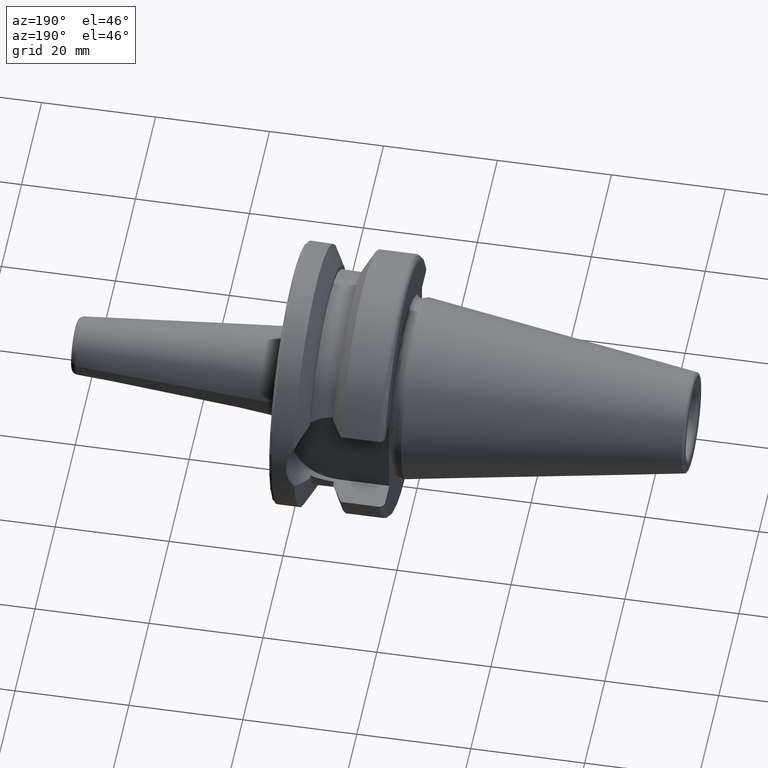
[diagram: clean part render]
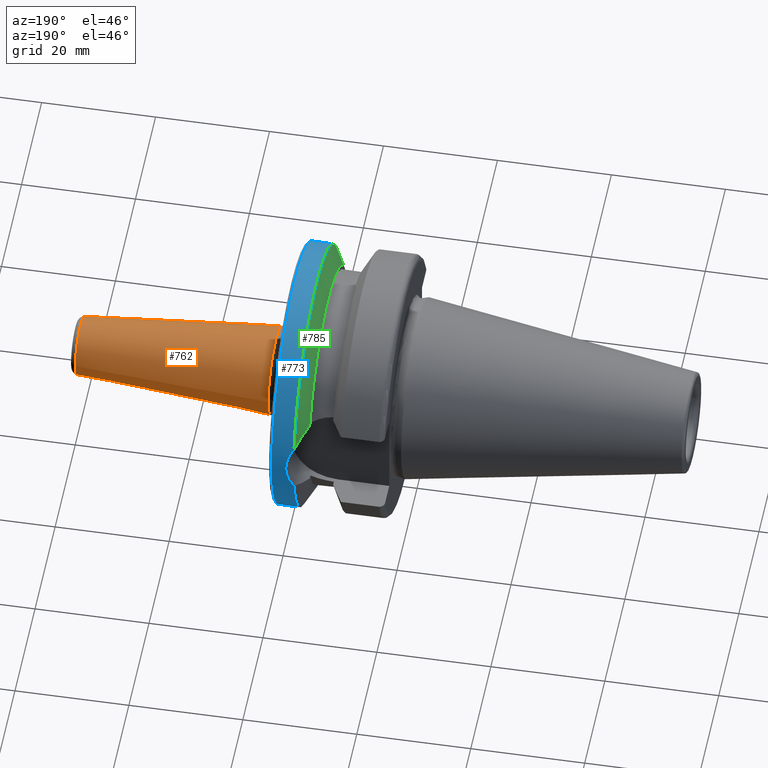
[diagram: same view with three faces highlighted in distinct colors, each labeled with its STEP entity id]
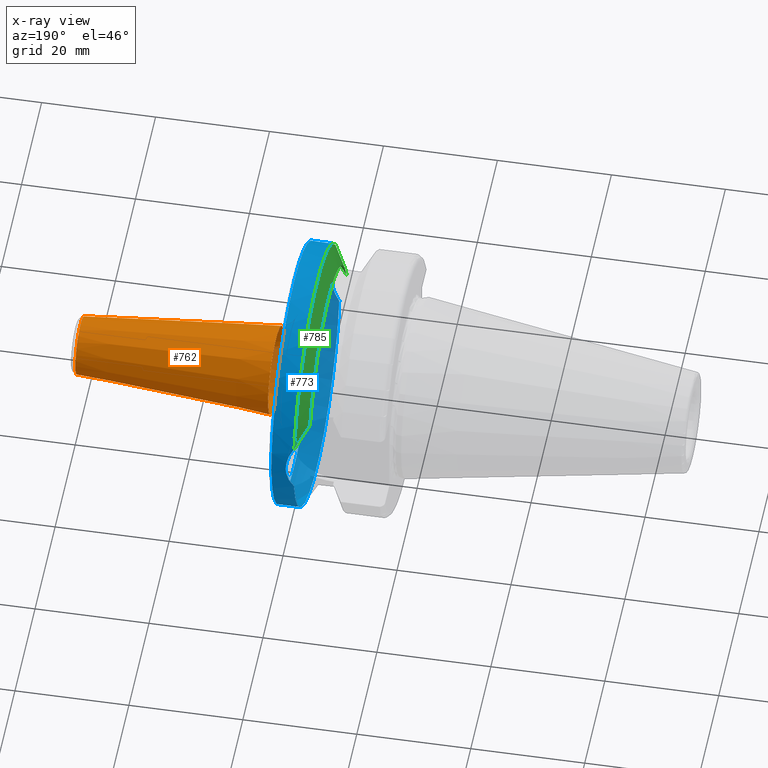
[diagram: x-ray of the same camera — body ghosted, the three highlighted faces saturated]
A machine part, auxiliary view with three faces highlighted in distinct colors.
The next image is the same camera in x-ray (body ghosted, the three faces saturated) — at least one of them is partly hidden behind the body in this view.
Their STEP definitions:

[orange] entity #762 — the highlighted conical surface has half-angle 4.5 deg.
#38=CONICAL_SURFACE('',#842,6.49533242966776,0.0785398163397455);
#49=LINE('',#1207,#88);
#88=VECTOR('',#965,6.49533242966776);
#163=FACE_OUTER_BOUND('',#211,.T.);
#211=EDGE_LOOP('',(#529,#530,#531,#532,#533,#534));
#266=CIRCLE('',#840,5.07252684207492);
#267=CIRCLE('',#841,5.07252684207492);
#268=CIRCLE('',#843,7.77308433311076);
#269=CIRCLE('',#844,7.77308433311076);
#321=VERTEX_POINT('',#1200);
#322=VERTEX_POINT('',#1202);
#323=VERTEX_POINT('',#1206);
#324=VERTEX_POINT('',#1208);
#401=EDGE_CURVE('',#321,#322,#266,.T.);
#402=EDGE_CURVE('',#322,#321,#267,.T.);
#403=EDGE_CURVE('',#322,#323,#49,.T.);
#404=EDGE_CURVE('',#324,#323,#268,.T.);
#405=EDGE_CURVE('',#323,#324,#269,.T.);
#529=ORIENTED_EDGE('',*,*,#401,.F.);
#530=ORIENTED_EDGE('',*,*,#402,.F.);
#531=ORIENTED_EDGE('',*,*,#403,.T.);
#532=ORIENTED_EDGE('',*,*,#404,.F.);
#533=ORIENTED_EDGE('',*,*,#405,.F.);
#534=ORIENTED_EDGE('',*,*,#403,.F.);
#762=ADVANCED_FACE('',(#163),#38,.T.);
#840=AXIS2_PLACEMENT_3D('',#1203,#959,#960);
#841=AXIS2_PLACEMENT_3D('',#1204,#961,#962);
#842=AXIS2_PLACEMENT_3D('',#1205,#963,#964);
#843=AXIS2_PLACEMENT_3D('',#1209,#966,#967);
#844=AXIS2_PLACEMENT_3D('',#1210,#968,#969);
#959=DIRECTION('center_axis',(1.,0.,0.));
#960=DIRECTION('ref_axis',(0.,1.,3.06161699786838E-17));
#961=DIRECTION('center_axis',(1.,0.,0.));
#962=DIRECTION('ref_axis',(0.,1.,3.06161699786838E-17));
#963=DIRECTION('center_axis',(-1.,0.,0.));
#964=DIRECTION('ref_axis',(0.,-1.,0.));
#965=DIRECTION('',(-0.996917333733128,0.0784590957278456,9.6084680447102E-18));
#966=DIRECTION('center_axis',(-1.,0.,0.));
#967=DIRECTION('ref_axis',(0.,1.,1.22464679914735E-16));
#968=DIRECTION('center_axis',(-1.,0.,0.));
#969=DIRECTION('ref_axis',(0.,1.,1.22464679914735E-16));
#1200=CARTESIAN_POINT('',(59.0784590957278,-6.21205376073608E-16,5.07252684207492));
#1202=CARTESIAN_POINT('',(59.0784590957278,5.07252684207492,6.21205376073608E-16));
#1203=CARTESIAN_POINT('Origin',(59.0784590957278,0.,4.65904032055206E-16));
#1204=CARTESIAN_POINT('Origin',(59.0784590957278,0.,4.65904032055206E-16));
#1205=CARTESIAN_POINT('Origin',(41.,0.,0.));
#1206=CARTESIAN_POINT('',(24.7646227128164,7.77308433311076,9.51928284804654E-16));
#1207=CARTESIAN_POINT('',(41.,6.49533242966776,7.95448806939063E-16));
#1208=CARTESIAN_POINT('',(24.7646227128164,-9.51928667994645E-16,-7.77308433311076));
#1209=CARTESIAN_POINT('Origin',(24.7646227128164,0.,0.));
#1210=CARTESIAN_POINT('Origin',(24.7646227128164,0.,0.));

[blue] entity #773 — the highlighted cylindrical surface (bore or boss wall) has radius 23 mm, axis along (1, 0, 0).
#22=B_SPLINE_CURVE_WITH_KNOTS('',3,(#1260,#1261,#1262,#1263,#1264,#1265),
 .UNSPECIFIED.,.F.,.F.,(4,2,4),(1.22422978521585,1.53019992929475,1.68242086035696),
 .UNSPECIFIED.);
#23=B_SPLINE_CURVE_WITH_KNOTS('',3,(#1267,#1268,#1269,#1270,#1271,#1272),
 .UNSPECIFIED.,.F.,.F.,(4,2,4),(0.766038710074736,0.918259641136944,1.22422978521585),
 .UNSPECIFIED.);
#29=B_SPLINE_CURVE_WITH_KNOTS('',3,(#1353,#1354,#1355,#1356,#1357,#1358,
#1359,#1360,#1361,#1362),.UNSPECIFIED.,.F.,.F.,(4,2,2,2,4),(3.21449828050643,
3.36671921156864,3.67268935564754,3.97865949972644,4.13088043078865),
 .UNSPECIFIED.);
#67=LINE('',#1349,#106);
#106=VECTOR('',#1027,23.);
#130=CYLINDRICAL_SURFACE('',#863,23.);
#174=FACE_OUTER_BOUND('',#223,.T.);
#223=EDGE_LOOP('',(#590,#591,#592,#593,#594,#595,#596,#597,#598));
#278=CIRCLE('',#864,23.);
#279=CIRCLE('',#865,23.);
#280=CIRCLE('',#866,23.);
#281=CIRCLE('',#867,23.);
#336=VERTEX_POINT('',#1252);
#337=VERTEX_POINT('',#1259);
#338=VERTEX_POINT('',#1266);
#354=VERTEX_POINT('',#1346);
#355=VERTEX_POINT('',#1347);
#356=VERTEX_POINT('',#1350);
#357=VERTEX_POINT('',#1352);
#422=EDGE_CURVE('',#337,#336,#22,.T.);
#423=EDGE_CURVE('',#338,#337,#23,.T.);
#443=EDGE_CURVE('',#354,#355,#278,.T.);
#444=EDGE_CURVE('',#354,#337,#67,.T.);
#445=EDGE_CURVE('',#336,#356,#279,.T.);
#446=EDGE_CURVE('',#356,#357,#29,.T.);
#447=EDGE_CURVE('',#357,#338,#280,.T.);
#448=EDGE_CURVE('',#355,#354,#281,.T.);
#590=ORIENTED_EDGE('',*,*,#443,.F.);
#591=ORIENTED_EDGE('',*,*,#444,.T.);
#592=ORIENTED_EDGE('',*,*,#422,.T.);
#593=ORIENTED_EDGE('',*,*,#445,.T.);
#594=ORIENTED_EDGE('',*,*,#446,.T.);
#595=ORIENTED_EDGE('',*,*,#447,.T.);
#596=ORIENTED_EDGE('',*,*,#423,.T.);
#597=ORIENTED_EDGE('',*,*,#444,.F.);
#598=ORIENTED_EDGE('',*,*,#448,.F.);
#773=ADVANCED_FACE('',(#174),#130,.T.);
#863=AXIS2_PLACEMENT_3D('',#1345,#1023,#1024);
#864=AXIS2_PLACEMENT_3D('',#1348,#1025,#1026);
#865=AXIS2_PLACEMENT_3D('',#1351,#1028,#1029);
#866=AXIS2_PLACEMENT_3D('',#1363,#1030,#1031);
#867=AXIS2_PLACEMENT_3D('',#1364,#1032,#1033);
#1023=DIRECTION('center_axis',(1.,1.62798202122572E-21,0.));
#1024=DIRECTION('ref_axis',(0.,1.,0.));
#1025=DIRECTION('center_axis',(1.,1.62798202122572E-21,0.));
#1026=DIRECTION('ref_axis',(0.,0.,-1.));
#1027=DIRECTION('',(-1.,-1.62798202122572E-21,0.));
#1028=DIRECTION('center_axis',(1.,1.62798202122572E-21,0.));
#1029=DIRECTION('ref_axis',(0.,0.,-1.));
#1030=DIRECTION('center_axis',(1.,1.62798202122572E-21,0.));
#1031=DIRECTION('ref_axis',(0.,0.,-1.));
#1032=DIRECTION('center_axis',(1.,1.62798202122572E-21,0.));
#1033=DIRECTION('ref_axis',(0.,0.,-1.));
#1252=CARTESIAN_POINT('',(17.6299409595063,-22.5570191120744,-4.49231441213885));
#1259=CARTESIAN_POINT('',(19.,-23.,-2.10223320941018E-15));
#1260=CARTESIAN_POINT('Ctrl Pts',(19.,-23.,-1.38777878078145E-15));
#1261=CARTESIAN_POINT('Ctrl Pts',(19.,-23.,-1.01990048026301));
#1262=CARTESIAN_POINT('Ctrl Pts',(18.7944172124482,-22.9255444052516,-2.10203503507381));
#1263=CARTESIAN_POINT('Ctrl Pts',(18.177239764242,-22.7242805076598,-3.58529925507118));
#1264=CARTESIAN_POINT('Ctrl Pts',(17.9228644767949,-22.6437642529734,-4.05674565589789));
#1265=CARTESIAN_POINT('Ctrl Pts',(17.6299409595063,-22.5570191120744,-4.49231441213885));
#1266=CARTESIAN_POINT('',(17.6299409595063,-22.5570191120744,4.49231441213885));
#1267=CARTESIAN_POINT('Ctrl Pts',(17.6299409595063,-22.5570191120744,4.49231441213885));
#1268=CARTESIAN_POINT('Ctrl Pts',(17.9228644767949,-22.6437642529734,4.05674565589789));
#1269=CARTESIAN_POINT('Ctrl Pts',(18.177239764242,-22.7242805076598,3.58529925507118));
#1270=CARTESIAN_POINT('Ctrl Pts',(18.7944172124482,-22.9255444052516,2.10203503507381));
#1271=CARTESIAN_POINT('Ctrl Pts',(19.,-23.,1.01990048026301));
#1272=CARTESIAN_POINT('Ctrl Pts',(19.,-23.,-1.38777878078145E-15));
#1345=CARTESIAN_POINT('Origin',(19.5649704797531,2.08176742104803E-15,0.));
#1346=CARTESIAN_POINT('',(21.5,-23.,-2.81668763803891E-15));
#1347=CARTESIAN_POINT('',(21.5,-7.34917066797608E-16,23.));
#1348=CARTESIAN_POINT('Origin',(21.5,2.0817705712413E-15,0.));
#1349=CARTESIAN_POINT('',(19.5649704797531,-23.,-2.81668763803891E-15));
#1350=CARTESIAN_POINT('',(17.6299409595063,22.5570191120744,-4.49231441213885));
#1351=CARTESIAN_POINT('Origin',(17.6299409595063,2.08176427085476E-15,0.));
#1352=CARTESIAN_POINT('',(17.6299409595063,22.5570191120744,4.49231441213885));
#1353=CARTESIAN_POINT('Ctrl Pts',(17.6299409595063,22.5570191120744,-4.49231441213885));
#1354=CARTESIAN_POINT('Ctrl Pts',(17.9228644767949,22.6437642529734,-4.05674565589788));
#1355=CARTESIAN_POINT('Ctrl Pts',(18.177239764242,22.7242805076598,-3.58529925507119));
#1356=CARTESIAN_POINT('Ctrl Pts',(18.7944172124482,22.9255444052516,-2.10203503507382));
#1357=CARTESIAN_POINT('Ctrl Pts',(19.,23.,-1.01990048026301));
#1358=CARTESIAN_POINT('Ctrl Pts',(19.,23.,1.01990048026301));
#1359=CARTESIAN_POINT('Ctrl Pts',(18.7944172124482,22.9255444052516,2.10203503507381));
#1360=CARTESIAN_POINT('Ctrl Pts',(18.177239764242,22.7242805076598,3.58529925507118));
#1361=CARTESIAN_POINT('Ctrl Pts',(17.9228644767949,22.6437642529734,4.05674565589789));
#1362=CARTESIAN_POINT('Ctrl Pts',(17.6299409595063,22.5570191120744,4.49231441213885));
#1363=CARTESIAN_POINT('Origin',(17.6299409595063,2.08176427085476E-15,0.));
#1364=CARTESIAN_POINT('Origin',(21.5,2.0817705712413E-15,0.));

[green] entity #785 — the highlighted conical surface has half-angle 60.125 deg.
#24=B_SPLINE_CURVE_WITH_KNOTS('',3,(#1274,#1275,#1276,#1277,#1278,#1279),
 .UNSPECIFIED.,.F.,.F.,(4,2,4),(9.25978800315029,9.40675815006574,9.7527233553007),
 .UNSPECIFIED.);
#36=B_SPLINE_CURVE_WITH_KNOTS('',3,(#1442,#1443,#1444,#1445,#1446,#1447),
 .UNSPECIFIED.,.F.,.F.,(4,2,4),(1.87172696882225,2.21769217405721,2.36466232097267),
 .UNSPECIFIED.);
#43=CONICAL_SURFACE('',#887,21.2331286619655,1.04937921276159);
#186=FACE_OUTER_BOUND('',#235,.T.);
#235=EDGE_LOOP('',(#659,#660,#661,#662));
#280=CIRCLE('',#866,23.);
#290=CIRCLE('',#888,19.466257323931);
#338=VERTEX_POINT('',#1266);
#339=VERTEX_POINT('',#1273);
#357=VERTEX_POINT('',#1352);
#372=VERTEX_POINT('',#1440);
#424=EDGE_CURVE('',#338,#339,#24,.T.);
#447=EDGE_CURVE('',#357,#338,#280,.T.);
#471=EDGE_CURVE('',#372,#357,#36,.T.);
#480=EDGE_CURVE('',#372,#339,#290,.T.);
#659=ORIENTED_EDGE('',*,*,#424,.F.);
#660=ORIENTED_EDGE('',*,*,#447,.F.);
#661=ORIENTED_EDGE('',*,*,#471,.F.);
#662=ORIENTED_EDGE('',*,*,#480,.T.);
#785=ADVANCED_FACE('',(#186),#43,.T.);
#866=AXIS2_PLACEMENT_3D('',#1363,#1030,#1031);
#887=AXIS2_PLACEMENT_3D('',#1475,#1085,#1086);
#888=AXIS2_PLACEMENT_3D('',#1476,#1087,#1088);
#1030=DIRECTION('center_axis',(1.,1.62798202122572E-21,0.));
#1031=DIRECTION('ref_axis',(0.,0.,-1.));
#1085=DIRECTION('center_axis',(1.,1.62798202122572E-21,0.));
#1086=DIRECTION('ref_axis',(0.,1.,0.));
#1087=DIRECTION('center_axis',(1.,1.62798202122572E-21,0.));
#1088=DIRECTION('ref_axis',(0.,0.,-1.));
#1266=CARTESIAN_POINT('',(17.6299409595063,-22.5570191120744,4.49231441213885));
#1273=CARTESIAN_POINT('',(15.6,-18.3236233917175,6.57114906237867));
#1274=CARTESIAN_POINT('Ctrl Pts',(17.6299409595063,-22.5570191120744,4.49231441213885));
#1275=CARTESIAN_POINT('Ctrl Pts',(17.4363948664282,-22.1561594342104,4.78011182703288));
#1276=CARTESIAN_POINT('Ctrl Pts',(17.2377433516599,-21.7440485808551,5.03500381733927));
#1277=CARTESIAN_POINT('Ctrl Pts',(16.6013448473778,-20.4213600687136,5.77346727707879));
#1278=CARTESIAN_POINT('Ctrl Pts',(16.1098572405085,-19.3959223553921,6.21035429941431));
#1279=CARTESIAN_POINT('Ctrl Pts',(15.6,-18.3236233917175,6.57114906237867));
#1352=CARTESIAN_POINT('',(17.6299409595063,22.5570191120744,4.49231441213885));
#1363=CARTESIAN_POINT('Origin',(17.6299409595063,2.08176427085476E-15,0.));
#1440=CARTESIAN_POINT('',(15.6,18.3236233917175,6.57114906237867));
#1442=CARTESIAN_POINT('Ctrl Pts',(15.6,18.3236233917175,6.57114906237867));
#1443=CARTESIAN_POINT('Ctrl Pts',(16.1098572405085,19.3959223553921,6.21035429941431));
#1444=CARTESIAN_POINT('Ctrl Pts',(16.6013448473778,20.4213600687136,5.77346727707879));
#1445=CARTESIAN_POINT('Ctrl Pts',(17.2377433516599,21.744048580855,5.03500381733928));
#1446=CARTESIAN_POINT('Ctrl Pts',(17.4363948664282,22.1561594342104,4.78011182703289));
#1447=CARTESIAN_POINT('Ctrl Pts',(17.6299409595063,22.5570191120744,4.49231441213885));
#1475=CARTESIAN_POINT('Origin',(16.6149704797531,2.08176261850107E-15,0.));
#1476=CARTESIAN_POINT('Origin',(15.6,2.08176096614738E-15,0.));